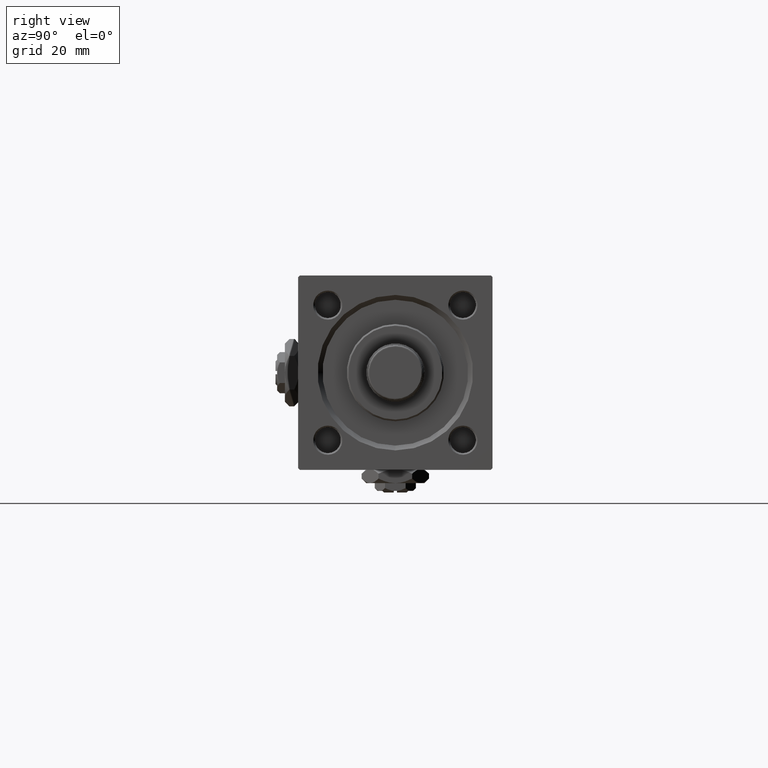
[diagram: clean part render]
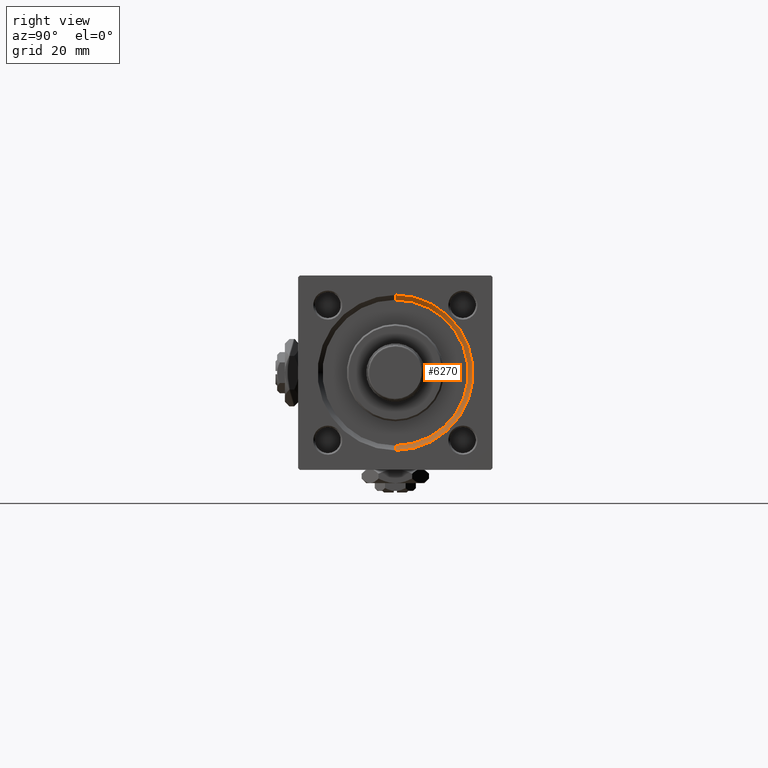
[diagram: same view with one face highlighted and labeled with its STEP entity id]
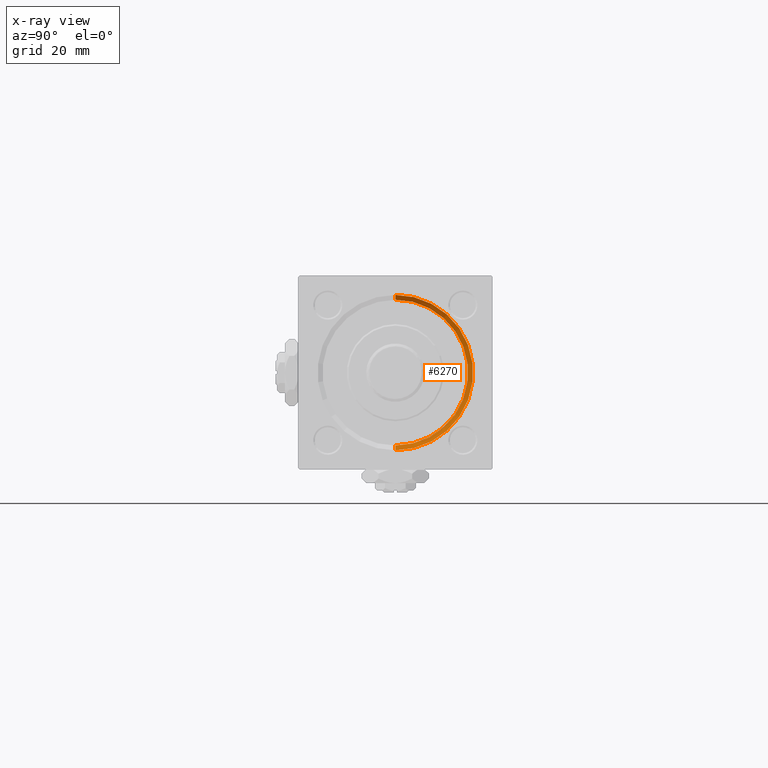
[diagram: x-ray of the same camera — body ghosted, the highlighted face saturated]
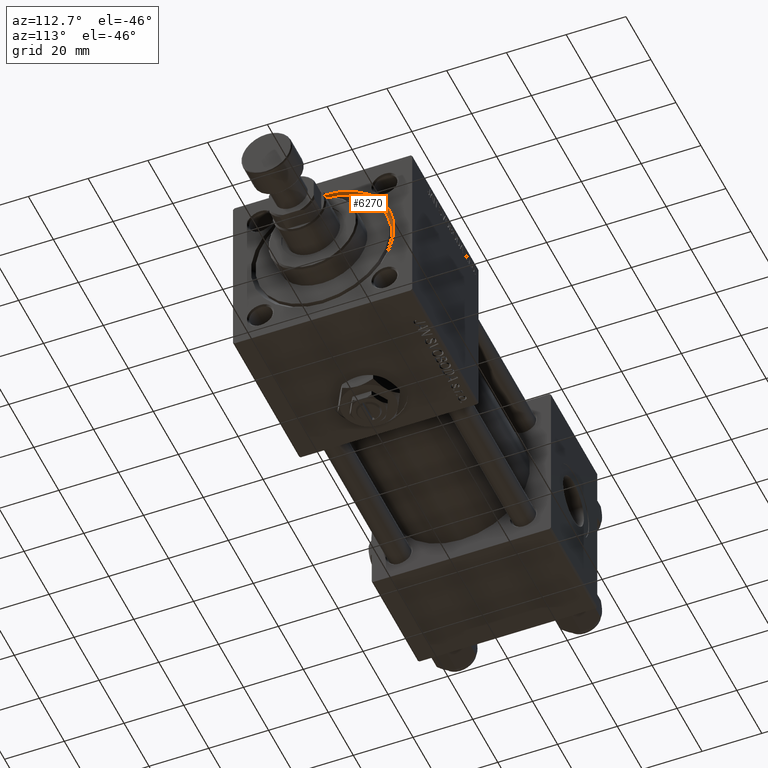
[diagram: same view with one face highlighted and labeled with its STEP entity id]
A machine part, right view. The second image highlights one B-rep face of the part: STEP entity #6270.
The next image is the same camera in x-ray: the body ghosted, the highlighted face saturated — about 0% of this face is hidden behind the body in this view.
A second angle (auxiliary view) of the same face is appended — the face is thin or edge-on in the first view.
In plain terms, the highlighted conical surface has half-angle 45 deg.
Its self-contained STEP definition (entity closure, byte-faithful):
#7 = VERTEX_POINT ( 'NONE', #30900 ) ;
#408 = AXIS2_PLACEMENT_3D ( 'NONE', #40801, #8340, #24580 ) ;
#868 = ORIENTED_EDGE ( 'NONE', *, *, #43583, .F. ) ;
#6270 = ADVANCED_FACE ( 'NONE', ( #40224 ), #9153, .F. ) ;
#6382 = CARTESIAN_POINT ( 'NONE',  ( 148.0000000000000000, 0.000000000000000000, -24.00000000000003908 ) ) ;
#7413 = DIRECTION ( 'NONE',  ( 0.7071067811865524577, 8.659560562354874926E-17, 0.7071067811865426878 ) ) ;
#8340 = DIRECTION ( 'NONE',  ( 1.000000000000000000, 0.000000000000000000, 0.000000000000000000 ) ) ;
#8354 = DIRECTION ( 'NONE',  ( 0.7071067811865524577, 0.000000000000000000, -0.7071067811865426878 ) ) ;
#9153 = CONICAL_SURFACE ( 'NONE', #38921, 22.50000000000000355, 0.7853981633974415066 ) ;
#10206 = CARTESIAN_POINT ( 'NONE',  ( 146.4999999999999432, 0.000000000000000000, -22.50000000000000355 ) ) ;
#12094 = CARTESIAN_POINT ( 'NONE',  ( 146.4999999999999432, 0.000000000000000000, -22.50000000000000355 ) ) ;
#12496 = VECTOR ( 'NONE', #8354, 1000.000000000000000 ) ;
#13191 = VERTEX_POINT ( 'NONE', #10206 ) ;
#17149 = ORIENTED_EDGE ( 'NONE', *, *, #36406, .F. ) ;
#17995 = EDGE_CURVE ( 'NONE', #7, #51633, #24158, .T. ) ;
#18005 = ORIENTED_EDGE ( 'NONE', *, *, #17995, .F. ) ;
#19162 = VECTOR ( 'NONE', #7413, 1000.000000000000000 ) ;
#20517 = DIRECTION ( 'NONE',  ( 0.000000000000000000, 0.000000000000000000, -1.000000000000000000 ) ) ;
#20766 = CARTESIAN_POINT ( 'NONE',  ( 146.4999999999999432, 0.000000000000000000, 0.000000000000000000 ) ) ;
#22497 = EDGE_CURVE ( 'NONE', #13191, #43931, #44299, .T. ) ;
#22515 = CIRCLE ( 'NONE', #408, 22.50000000000000355 ) ;
#23316 = CARTESIAN_POINT ( 'NONE',  ( 148.0000000000000000, 0.000000000000000000, 0.000000000000000000 ) ) ;
#23584 = DIRECTION ( 'NONE',  ( -1.000000000000000000, 0.000000000000000000, -0.000000000000000000 ) ) ;
#24158 = LINE ( 'NONE', #51861, #19162 ) ;
#24580 = DIRECTION ( 'NONE',  ( 0.000000000000000000, 0.000000000000000000, 1.000000000000000000 ) ) ;
#30900 = CARTESIAN_POINT ( 'NONE',  ( 146.4999999999999432, 2.755455298081545172E-15, 22.50000000000000355 ) ) ;
#36406 = EDGE_CURVE ( 'NONE', #13191, #7, #22515, .T. ) ;
#38831 = AXIS2_PLACEMENT_3D ( 'NONE', #23316, #23584, #52057 ) ;
#38921 = AXIS2_PLACEMENT_3D ( 'NONE', #20766, #44226, #20517 ) ;
#40224 = FACE_OUTER_BOUND ( 'NONE', #51058, .T. ) ;
#40299 = ORIENTED_EDGE ( 'NONE', *, *, #22497, .T. ) ;
#40801 = CARTESIAN_POINT ( 'NONE',  ( 146.4999999999999432, 0.000000000000000000, 0.000000000000000000 ) ) ;
#43149 = CARTESIAN_POINT ( 'NONE',  ( 148.0000000000000000, 2.939152317953652628E-15, 24.00000000000003908 ) ) ;
#43583 = EDGE_CURVE ( 'NONE', #51633, #43931, #47333, .T. ) ;
#43931 = VERTEX_POINT ( 'NONE', #6382 ) ;
#44226 = DIRECTION ( 'NONE',  ( 1.000000000000000000, 0.000000000000000000, 0.000000000000000000 ) ) ;
#44299 = LINE ( 'NONE', #12094, #12496 ) ;
#47333 = CIRCLE ( 'NONE', #38831, 24.00000000000003908 ) ;
#51058 = EDGE_LOOP ( 'NONE', ( #18005, #17149, #40299, #868 ) ) ;
#51633 = VERTEX_POINT ( 'NONE', #43149 ) ;
#51861 = CARTESIAN_POINT ( 'NONE',  ( 146.4999999999999432, 2.755455298081545172E-15, 22.50000000000000355 ) ) ;
#52057 = DIRECTION ( 'NONE',  ( 0.000000000000000000, 0.000000000000000000, 1.000000000000000000 ) ) ;